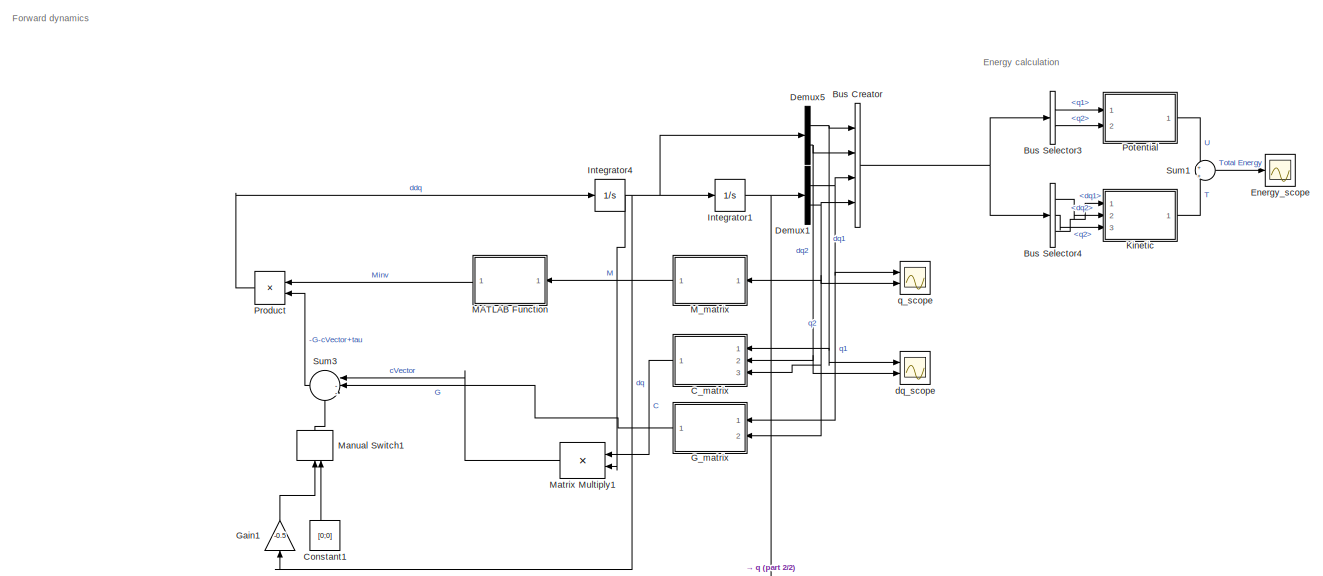
[diagram: root canvas - part 1/2, full width, top band]
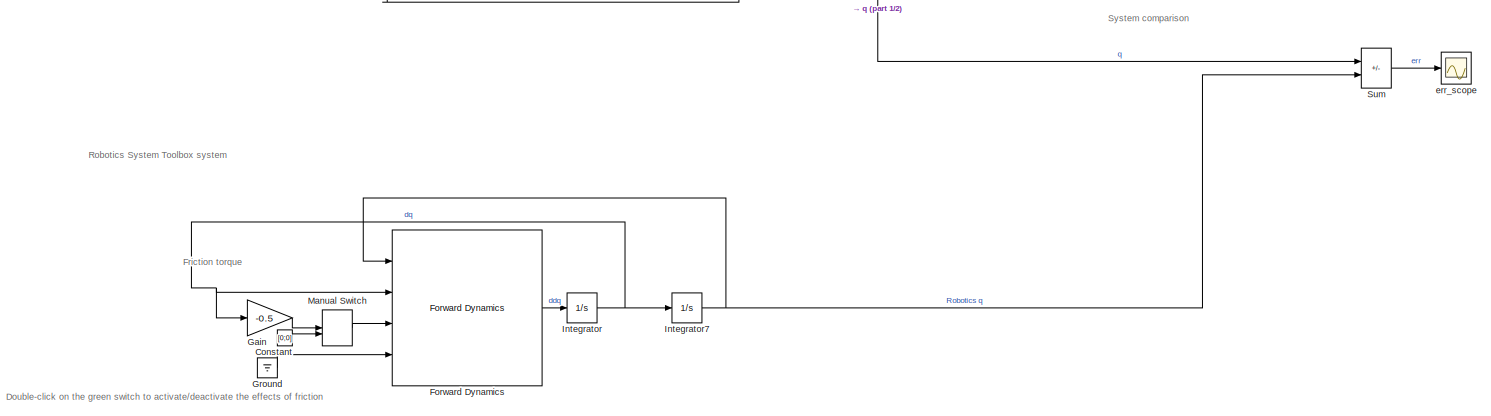
[diagram: root canvas - part 2/2, full width, bottom band]
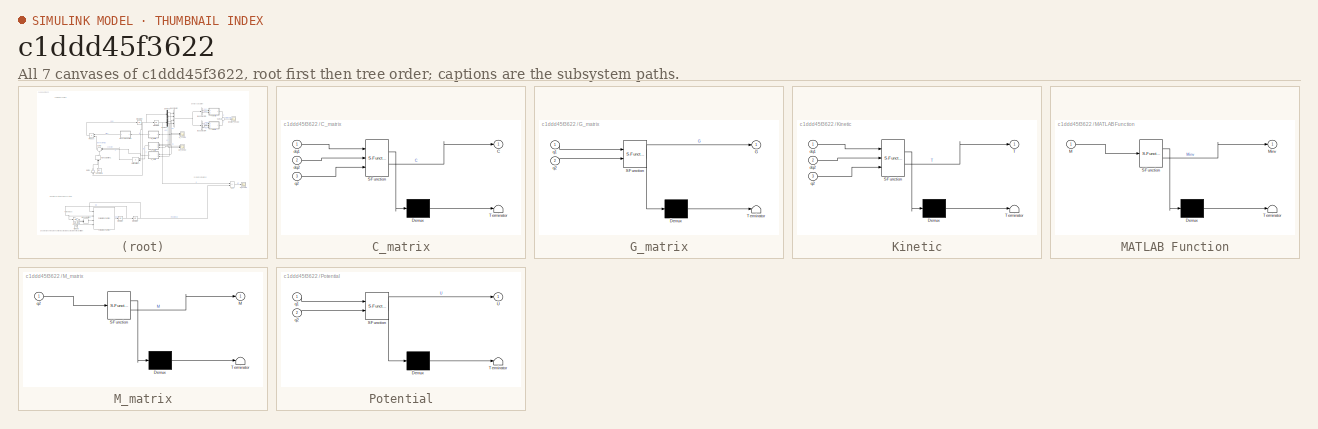
[diagram: thumbnail index - all 7 canvases of the model, root first then tree order]
MODEL slx_c1ddd45f3622
KIND model
CONFIG AbsTol = auto
CONFIG EnableMultiTasking = off
CONFIG FixedStep = 1E-3
CONFIG MaxStep = auto
CONFIG MinStep = auto
CONFIG RelTol = 1e-3
CONFIG SampleTimeConstraint = Unconstrained
CONFIG Solver = ode4
CONFIG SolverName = ode4
CONFIG StartTime = 0.0
CONFIG StopTime = 50
BLOCK [BusCreator] Bus Creator
  DisplayOption = bar
  InheritFromInputs = on
  Inputs = 4
  Ports = [4, 1]
BLOCK [BusSelector] Bus Selector3
  OutputSignals = q1,q2
  Ports = [1, 2]
BLOCK [BusSelector] Bus Selector4
  OutputSignals = dq2,q2,dq1
  Ports = [1, 3]
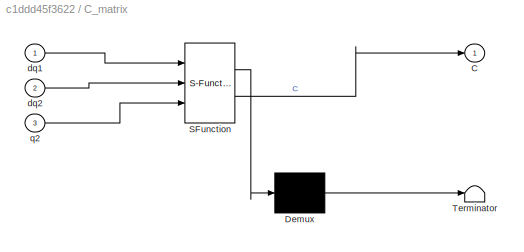
BLOCK [SubSystem] C_matrix
  ErrorFcn = Stateflow.Translate.translate
  PermitHierarchicalResolution = ExplicitOnly
  Ports = [3, 1]
  RequestExecContextInheritance = off
  SFBlockType = MATLAB Function
  TreatAsAtomicUnit = on
BLOCK [Demux] C_matrix/ Demux 
  Outputs = 1
  Ports = [1, 1]
BLOCK [S-Function] C_matrix/ SFunction 
  EnableBusSupport = on
  FunctionName = sf_sfun
  PortCounts = [3 2]
  Ports = [3, 2]
  SFcnIsStateOwnerBlock = off
  SFunctionDeploymentMode = off
  Tag = Stateflow S-Function 1
BLOCK [Terminator] C_matrix/ Terminator 
BLOCK [Outport] C_matrix/C
BLOCK [Inport] C_matrix/dq1
BLOCK [Inport] C_matrix/dq2
  Port = 2
BLOCK [Inport] C_matrix/q2
  Port = 3
BLOCK [Constant] Constant
  Value = [0;0]
  VectorParams1D = off
BLOCK [Constant] Constant1
  NameLocation = right
  Value = [0;0]
BLOCK [Demux] Demux1
  Outputs = 2
  Ports = [1, 2]
BLOCK [Demux] Demux5
  Outputs = 2
  Ports = [1, 2]
BLOCK [Scope] Energy_scope
  Floating = off
  NumInputPorts = 1
  Ports = [1]
  ScopeSpecificationString = Simulink.scopes.TimeScopeBlockCfg('CurrentConfiguration', extmgr.ConfigurationSet(extmgr.Configuration('Core','General UI',true,'FigureColor',[0 0 0]),extmgr.Configuration('Core','Source UI',true),extmgr.Configuration('Sources','WiredSimulink',true,'DataLoggingVariableName','ScopeData2'),extmgr.Configuration('Visuals','Time Domain',true,'SerializedDisplays',{struct('MinYLimReal','-22.06899','MaxYL...<+1844ch>
BLOCK [Reference] Forward Dynamics  REF=robotmaniplib/Forward Dynamics
  Ports = [4, 1]
  SourceBlock = robotmaniplib/Forward Dynamics
  SourceProductBaseCode = RO
  SourceType = Forward Dynamics
BLOCK [SubSystem] G_matrix
  ErrorFcn = Stateflow.Translate.translate
  PermitHierarchicalResolution = ExplicitOnly
  Ports = [2, 1]
  RequestExecContextInheritance = off
  SFBlockType = MATLAB Function
  TreatAsAtomicUnit = on
BLOCK [Demux] G_matrix/ Demux 
  Outputs = 1
  Ports = [1, 1]
BLOCK [S-Function] G_matrix/ SFunction 
  EnableBusSupport = on
  FunctionName = sf_sfun
  PortCounts = [2 2]
  Ports = [2, 2]
  SFcnIsStateOwnerBlock = off
  SFunctionDeploymentMode = off
  Tag = Stateflow S-Function 3
BLOCK [Terminator] G_matrix/ Terminator 
BLOCK [Outport] G_matrix/G
BLOCK [Inport] G_matrix/q1
BLOCK [Inport] G_matrix/q2
  Port = 2
BLOCK [Gain] Gain
  Gain = -0.5
BLOCK [Gain] Gain1
  Gain = -0.5
  NameLocation = right
BLOCK [Ground] Ground
BLOCK [Integrator] Integrator
  InitialCondition = zeros(2,1)
  Ports = [1, 1]
BLOCK [Integrator] Integrator1
  InitialCondition = [0 0]
  Ports = [1, 1]
  WrapState = on
BLOCK [Integrator] Integrator4
  InitialCondition = [0,0]
  Ports = [1, 1]
BLOCK [Integrator] Integrator7
  InitialCondition = zeros(2,1)
  Ports = [1, 1]
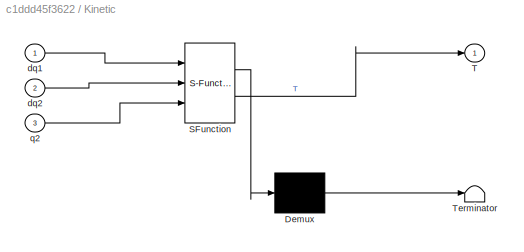
BLOCK [SubSystem] Kinetic
  ErrorFcn = Stateflow.Translate.translate
  PermitHierarchicalResolution = ExplicitOnly
  Ports = [3, 1]
  RequestExecContextInheritance = off
  SFBlockType = MATLAB Function
  TreatAsAtomicUnit = on
BLOCK [Demux] Kinetic/ Demux 
  Outputs = 1
  Ports = [1, 1]
BLOCK [S-Function] Kinetic/ SFunction 
  EnableBusSupport = on
  FunctionName = sf_sfun
  PortCounts = [3 2]
  Ports = [3, 2]
  SFcnIsStateOwnerBlock = off
  SFunctionDeploymentMode = off
  Tag = Stateflow S-Function 4
BLOCK [Terminator] Kinetic/ Terminator 
BLOCK [Outport] Kinetic/T
BLOCK [Inport] Kinetic/dq1
BLOCK [Inport] Kinetic/dq2
  Port = 2
BLOCK [Inport] Kinetic/q2
  Port = 3
BLOCK [SubSystem] MATLAB Function
  ErrorFcn = Stateflow.Translate.translate
  PermitHierarchicalResolution = ExplicitOnly
  Ports = [1, 1]
  RequestExecContextInheritance = off
  SFBlockType = MATLAB Function
  TreatAsAtomicUnit = on
BLOCK [Demux] MATLAB Function/ Demux 
  Outputs = 1
  Ports = [1, 1]
BLOCK [S-Function] MATLAB Function/ SFunction 
  EnableBusSupport = on
  FunctionName = sf_sfun
  PortCounts = [1 2]
  Ports = [1, 2]
  SFcnIsStateOwnerBlock = off
  SFunctionDeploymentMode = off
  Tag = Stateflow S-Function 6
BLOCK [Terminator] MATLAB Function/ Terminator 
BLOCK [Inport] MATLAB Function/M
BLOCK [Outport] MATLAB Function/Minv
BLOCK [SubSystem] M_matrix
  ErrorFcn = Stateflow.Translate.translate
  PermitHierarchicalResolution = ExplicitOnly
  Ports = [1, 1]
  RequestExecContextInheritance = off
  SFBlockType = MATLAB Function
  TreatAsAtomicUnit = on
BLOCK [Demux] M_matrix/ Demux 
  Outputs = 1
  Ports = [1, 1]
BLOCK [S-Function] M_matrix/ SFunction 
  EnableBusSupport = on
  FunctionName = sf_sfun
  PortCounts = [1 2]
  Ports = [1, 2]
  SFcnIsStateOwnerBlock = off
  SFunctionDeploymentMode = off
  Tag = Stateflow S-Function 2
BLOCK [Terminator] M_matrix/ Terminator 
BLOCK [Outport] M_matrix/M
BLOCK [Inport] M_matrix/q2
BLOCK [ManualSwitch] Manual Switch
  CurrentSetting = 0
BLOCK [ManualSwitch] Manual Switch1
  CurrentSetting = 0
  NameLocation = right
BLOCK [Product] Matrix Multiply1
  Multiplication = Matrix(*)
  OutMax = 2
  OutMin = 2
  Ports = [2, 1]
BLOCK [SubSystem] Potential
  ErrorFcn = Stateflow.Translate.translate
  PermitHierarchicalResolution = ExplicitOnly
  Ports = [2, 1]
  RequestExecContextInheritance = off
  SFBlockType = MATLAB Function
  TreatAsAtomicUnit = on
BLOCK [Demux] Potential/ Demux 
  Outputs = 1
  Ports = [1, 1]
BLOCK [S-Function] Potential/ SFunction 
  EnableBusSupport = on
  FunctionName = sf_sfun
  PortCounts = [2 2]
  Ports = [2, 2]
  SFcnIsStateOwnerBlock = off
  SFunctionDeploymentMode = off
  Tag = Stateflow S-Function 5
BLOCK [Terminator] Potential/ Terminator 
BLOCK [Outport] Potential/U
BLOCK [Inport] Potential/q1
BLOCK [Inport] Potential/q2
  Port = 2
BLOCK [Product] Product
  Multiplication = Matrix(*)
  Ports = [2, 1]
BLOCK [Sum] Sum
  IconShape = rectangular
  Inputs = +-
  Ports = [2, 1]
BLOCK [Sum] Sum1
  Inputs = +|+
  Ports = [2, 1]
BLOCK [Sum] Sum3
  Inputs = |--+
  Ports = [3, 1]
BLOCK [Scope] dq_scope
  Floating = off
  NumInputPorts = 2
  Ports = [2]
  ScopeSpecificationString = Simulink.scopes.TimeScopeBlockCfg('CurrentConfiguration', extmgr.ConfigurationSet(extmgr.Configuration('Core','General UI',true,'FigureColor',[0 0 0]),extmgr.Configuration('Core','Source UI',true),extmgr.Configuration('Sources','WiredSimulink',true,'DataLoggingVariableName','ScopeData1'),extmgr.Configuration('Visuals','Time Domain',true,'SerializedDisplays',{struct('MinYLimReal','-23.61564','MaxYL...<+1933ch>
BLOCK [Scope] err_scope
  Floating = off
  NumInputPorts = 1
  Ports = [1]
  ScopeSpecificationString = Simulink.scopes.TimeScopeBlockCfg('CurrentConfiguration', extmgr.ConfigurationSet(extmgr.Configuration('Core','General UI',true),extmgr.Configuration('Core','Source UI',true),extmgr.Configuration('Sources','WiredSimulink',true,'DataLoggingVariableName','ScopeData5'),extmgr.Configuration('Visuals','Time Domain',true,'SerializedDisplays',{struct('MinYLimReal','-104.50202','MaxYLimReal','18.59265','Y...<+1440ch>
BLOCK [Scope] q_scope
  Floating = off
  NumInputPorts = 2
  Ports = [2]
  ScopeSpecificationString = Simulink.scopes.TimeScopeBlockCfg('CurrentConfiguration', extmgr.ConfigurationSet(extmgr.Configuration('Core','General UI',true,'FigureColor',[0 0 0]),extmgr.Configuration('Core','Source UI',true),extmgr.Configuration('Sources','WiredSimulink',true),extmgr.Configuration('Visuals','Time Domain',true,'SerializedDisplays',{struct('MinYLimReal','-15','MaxYLimReal','15','YLabelReal','q_i(t)[rad]','MinY...<+1872ch>
ANNOTATION (root): Double-click on the green switch to activate/deactivate the effects of friction
ANNOTATION (root): Energy calculation
ANNOTATION (root): Forward dynamics
ANNOTATION (root): Friction torque
ANNOTATION (root): Robotics System Toolbox system
ANNOTATION (root): System comparison
NET Bus Creator:1 -> Bus Selector3:1, Bus Selector4:1
LINE Bus Selector3:1 -> Potential:1
LINE Bus Selector3:2 -> Potential:2
LINE Bus Selector4:1 -> Kinetic:2
LINE Bus Selector4:2 -> Kinetic:3
LINE Bus Selector4:3 -> Kinetic:1
LINE C_matrix:1 -> Matrix Multiply1:1
LINE Constant1:1 -> Manual Switch1:2
LINE Constant:1 -> Manual Switch:2
NET Demux1:1 -> Bus Creator:3, G_matrix:1, q_scope:1
NET Demux1:2 -> Bus Creator:4, C_matrix:3, G_matrix:2, M_matrix:1, q_scope:2
NET Demux5:1 -> Bus Creator:1, C_matrix:1, dq_scope:1
NET Demux5:2 -> Bus Creator:2, C_matrix:2, dq_scope:2
LINE Forward Dynamics:1 -> Integrator:1
LINE G_matrix:1 -> Sum3:2
LINE Gain1:1 -> Manual Switch1:1
LINE Gain:1 -> Manual Switch:1
LINE Ground:1 -> Forward Dynamics:4
NET Integrator1:1 -> Demux1:1, Sum:1
NET Integrator4:1 -> Demux5:1, Gain1:1, Integrator1:1, Matrix Multiply1:2
NET Integrator7:1 -> Forward Dynamics:1, Sum:2
NET Integrator:1 -> Forward Dynamics:2, Gain:1, Integrator7:1
LINE Kinetic:1 -> Sum1:2
LINE MATLAB Function:1 -> Product:1
LINE M_matrix:1 -> MATLAB Function:1
LINE Manual Switch1:1 -> Sum3:3
LINE Manual Switch:1 -> Forward Dynamics:3
LINE Matrix Multiply1:1 -> Sum3:1
LINE Potential:1 -> Sum1:1
LINE Product:1 -> Integrator4:1
LINE Sum1:1 -> Energy_scope:1
LINE Sum3:1 -> Product:2
LINE Sum:1 -> err_scope:1
note: NET lines group one-source signal fan-out (src -> all destinations, sorted); 1:1 wires keep LINE
CHART M_matrix states=1 transitions=1
  STATE_LABEL 'eML_blk_kernel()'
  STATE_LABEL 'SCRIPT:\nfunction M = M_matrix(q2)\n%#codegen\n\n%    This function was generated by the Symbolic Math Toolbox version 8.5.\n%    04-Nov-2022 18:56:12\n\nt2 = cos(q2);\nt3 = t2./2.0;\nt4 = t3+3.341666666666667e-1;\nM = reshape([t2+1.668333333333333,t4,t4,3.341666666666667e-1],[2,2]);\n'
CHART G_matrix states=1 transitions=1
  STATE_LABEL 'eML_blk_kernel()'
  STATE_LABEL 'SCRIPT:\nfunction G = G_matrix(q1,q2)\n%#codegen\n\n%    This function was generated by the Symbolic Math Toolbox version 8.5.\n%    04-Nov-2022 18:56:13\n\nt2 = q1+q2;\nt3 = cos(t2);\nt4 = t3.*(9.81e+2./2.0e+2);\nG = [t4+cos(q1).*1.4715e+1;t4];\n'
CHART Kinetic states=1 transitions=1
  STATE_LABEL 'eML_blk_kernel()'
  STATE_LABEL 'SCRIPT:\nfunction T = Kinetic(dq1,dq2,q2)\n%#codegen\n\n%    This function was generated by the Symbolic Math Toolbox version 8.5.\n%    04-Nov-2022 18:56:13\n\nt2 = cos(q2);\nt3 = t2./2.0;\nt4 = t3+3.341666666666667e-1;\nT = dq2.*(dq2.*1.670833333333333e-1+(dq1.*t4)./2.0)+dq1.*((dq2.*t4)./2.0+(dq1.*(t2+1.668333333333333))./2.0);\n'
CHART Potential states=1 transitions=1
  STATE_LABEL 'eML_blk_kernel()'
  STATE_LABEL 'SCRIPT:\nfunction U = Potential(q1,q2)\n%#codegen\n\n%    This function was generated by the Symbolic Math Toolbox version 8.5.\n%    04-Nov-2022 18:56:13\n\nU = sin(q1+q2).*(9.81e+2./2.0e+2)+sin(q1).*1.4715e+1;\n'
CHART MATLAB Function states=1 transitions=1
  STATE_LABEL 'eML_blk_kernel()'
  STATE_LABEL 'SCRIPT:\nfunction Minv = fcn(M)\nMinv = inv(M);\n'
CHART C_matrix states=1 transitions=1
  STATE_LABEL 'eML_blk_kernel()'
  STATE_LABEL 'SCRIPT:\nfunction C = C_matrix(dq1,dq2,q2)\n%#codegen\n\n%    This function was generated by the Symbolic Math Toolbox version 8.5.\n%    04-Nov-2022 18:56:12\n\nt2 = sin(q2);\nt3 = (dq1.*t2)./2.0;\nt4 = (dq2.*t2)./2.0;\nt5 = -t4;\nC = reshape([t5,t3,-t3+t5,0.0],[2,2]);\n'
CHART  states=0 transitions=0
CHART  states=0 transitions=0
CHART  states=0 transitions=0
CHART  states=0 transitions=0
CHART  states=0 transitions=0
CHART  states=0 transitions=0
